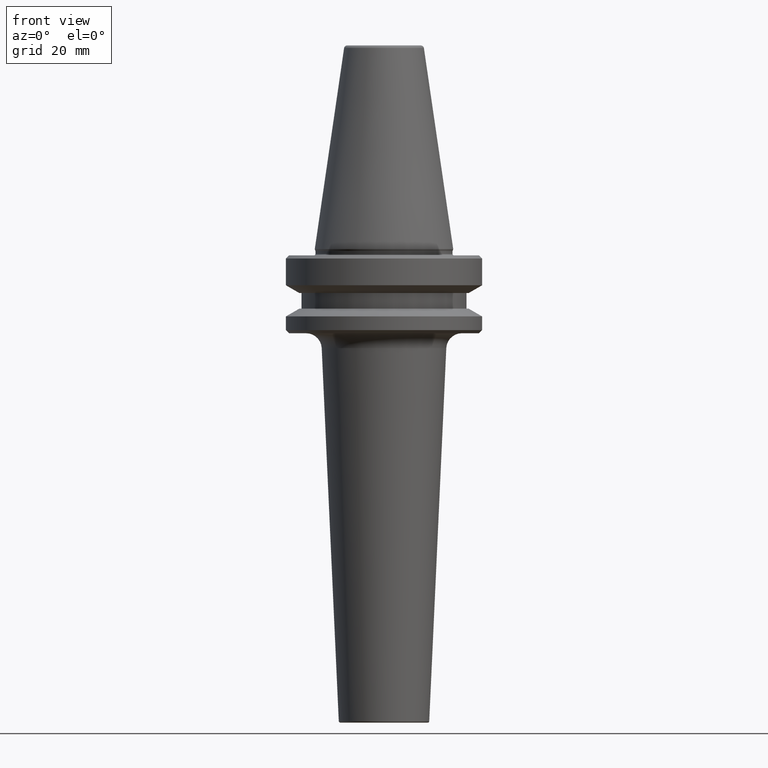
[diagram: clean part render]
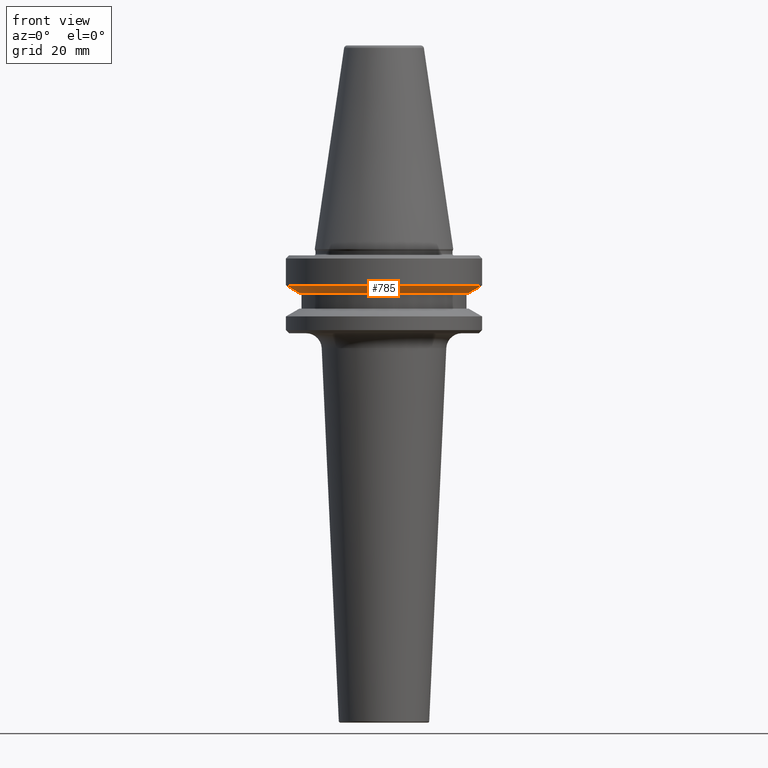
[diagram: same view with one face highlighted and labeled with its STEP entity id]
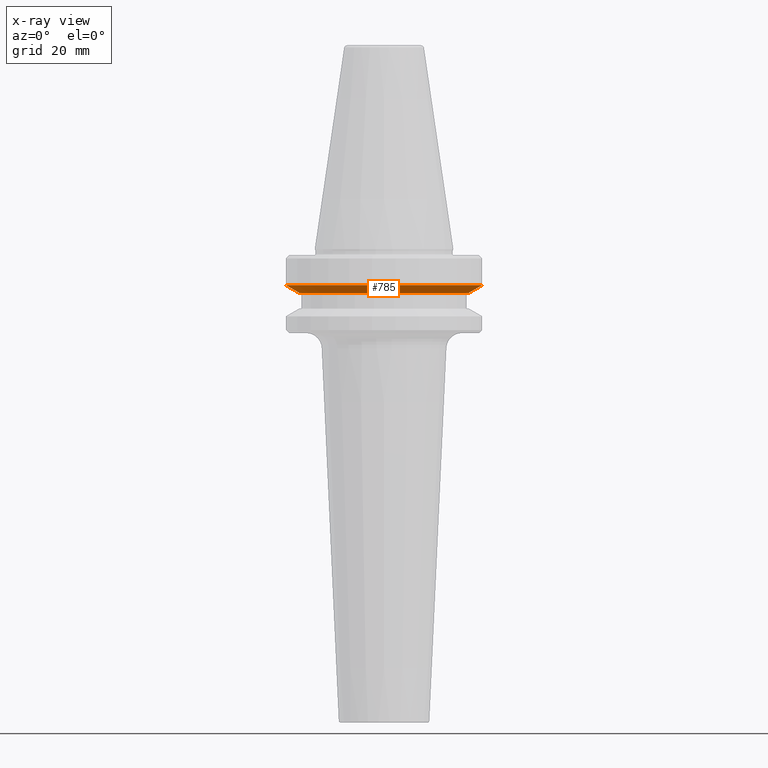
[diagram: x-ray of the same camera — body ghosted, the highlighted face saturated]
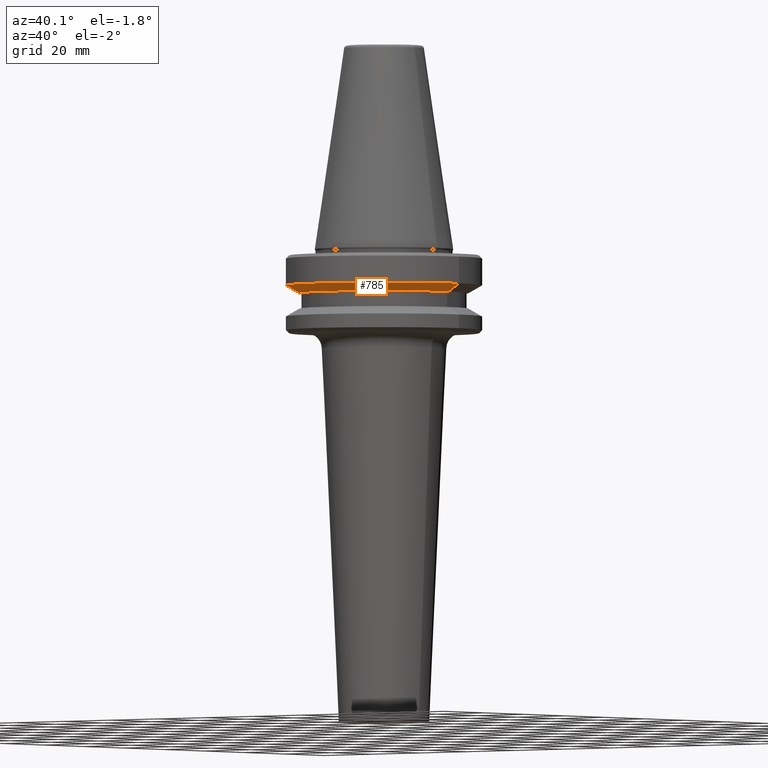
[diagram: same view with one face highlighted and labeled with its STEP entity id]
A machine part, front view. The second image highlights one B-rep face of the part: STEP entity #785.
The next image is the same camera in x-ray: the body ghosted, the highlighted face saturated — about 0% of this face is hidden behind the body in this view.
A second angle (auxiliary view) of the same face is appended — the face is thin or edge-on in the first view.
In plain terms, the highlighted conical surface has half-angle 60 deg.
Its self-contained STEP definition (entity closure, byte-faithful):
#28 = EDGE_CURVE ( 'NONE', #891, #82, #483, .T. ) ;
#82 = VERTEX_POINT ( 'NONE', #465 ) ;
#114 = ORIENTED_EDGE ( 'NONE', *, *, #1003, .F. ) ;
#138 = CARTESIAN_POINT ( 'NONE',  ( 0.0000000000000000000, 0.0000000000000000000, -76.99985799368391800 ) ) ;
#209 = EDGE_CURVE ( 'NONE', #1023, #82, #842, .T. ) ;
#224 = CONICAL_SURFACE ( 'NONE', #784, 31.50000000000008500, 1.047197551196597400 ) ;
#226 = DIRECTION ( 'NONE',  ( -0.0000000000000000000, -0.0000000000000000000, 1.000000000000000000 ) ) ;
#231 = DIRECTION ( 'NONE',  ( -0.0000000000000000000, -0.0000000000000000000, 1.000000000000000000 ) ) ;
#233 = EDGE_LOOP ( 'NONE', ( #114, #920, #953, #693 ) ) ;
#280 = FACE_OUTER_BOUND ( 'NONE', #233, .T. ) ;
#352 = DIRECTION ( 'NONE',  ( -0.8660254037844383700, 1.060575238724906500E-016, 0.5000000000000003300 ) ) ;
#376 = AXIS2_PLACEMENT_3D ( 'NONE', #720, #231, #802 ) ;
#394 = DIRECTION ( 'NONE',  ( -0.0000000000000000000, -0.0000000000000000000, 1.000000000000000000 ) ) ;
#465 = CARTESIAN_POINT ( 'NONE',  ( 31.50000000000008500, 0.0000000000000000000, -76.99985799368391800 ) ) ;
#483 = CIRCLE ( 'NONE', #376, 31.50000000000008500 ) ;
#500 = VERTEX_POINT ( 'NONE', #811 ) ;
#510 = CARTESIAN_POINT ( 'NONE',  ( -31.50000000000008500, 3.857637417314172900E-015, -76.99985799368391800 ) ) ;
#513 = VECTOR ( 'NONE', #352, 1000.000000000000100 ) ;
#550 = CARTESIAN_POINT ( 'NONE',  ( 31.50000000000008500, 0.0000000000000000000, -76.99985799368391800 ) ) ;
#675 = CARTESIAN_POINT ( 'NONE',  ( -31.50000000000008500, 3.857637417314172900E-015, -76.99985799368391800 ) ) ;
#693 = ORIENTED_EDGE ( 'NONE', *, *, #28, .F. ) ;
#708 = DIRECTION ( 'NONE',  ( 1.000000000000000000, 0.0000000000000000000, 0.0000000000000000000 ) ) ;
#712 = CARTESIAN_POINT ( 'NONE',  ( 0.0000000000000000000, 0.0000000000000000000, -79.50000000000012800 ) ) ;
#720 = CARTESIAN_POINT ( 'NONE',  ( 0.0000000000000000000, 0.0000000000000000000, -76.99985799368391800 ) ) ;
#730 = AXIS2_PLACEMENT_3D ( 'NONE', #712, #226, #799 ) ;
#733 = LINE ( 'NONE', #510, #513 ) ;
#779 = EDGE_CURVE ( 'NONE', #500, #1023, #892, .T. ) ;
#784 = AXIS2_PLACEMENT_3D ( 'NONE', #138, #394, #708 ) ;
#785 = ADVANCED_FACE ( 'NONE', ( #280 ), #224, .T. ) ;
#799 = DIRECTION ( 'NONE',  ( 1.000000000000000000, 0.0000000000000000000, 0.0000000000000000000 ) ) ;
#802 = DIRECTION ( 'NONE',  ( 1.000000000000000000, 0.0000000000000000000, 0.0000000000000000000 ) ) ;
#811 = CARTESIAN_POINT ( 'NONE',  ( -27.16962701892322600, 3.592478546794674900E-015, -79.50000000000012800 ) ) ;
#835 = CARTESIAN_POINT ( 'NONE',  ( 27.16962701892322600, 0.0000000000000000000, -79.50000000000012800 ) ) ;
#842 = LINE ( 'NONE', #550, #1045 ) ;
#891 = VERTEX_POINT ( 'NONE', #675 ) ;
#892 = CIRCLE ( 'NONE', #730, 27.16962701892322600 ) ;
#920 = ORIENTED_EDGE ( 'NONE', *, *, #779, .T. ) ;
#953 = ORIENTED_EDGE ( 'NONE', *, *, #209, .T. ) ;
#1003 = EDGE_CURVE ( 'NONE', #500, #891, #733, .T. ) ;
#1023 = VERTEX_POINT ( 'NONE', #835 ) ;
#1026 = DIRECTION ( 'NONE',  ( 0.8660254037844383700, 0.0000000000000000000, 0.5000000000000003300 ) ) ;
#1045 = VECTOR ( 'NONE', #1026, 1000.000000000000100 ) ;